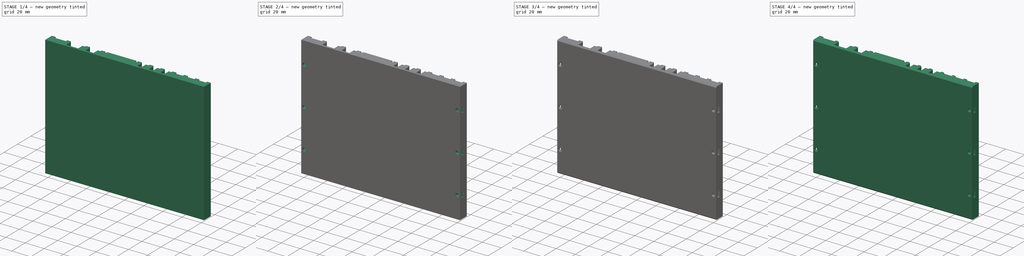
[diagram: build sequence overview — one tinted view per stage of 4, left to right]
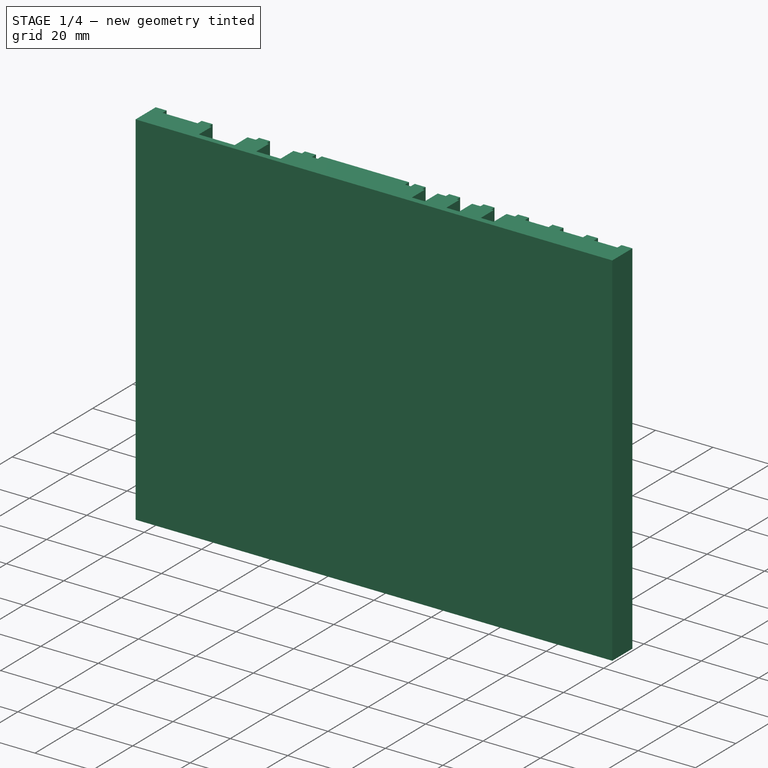
[diagram: stage 1 of 4 — iso view after this stage's code; geometry added in this stage tinted green]
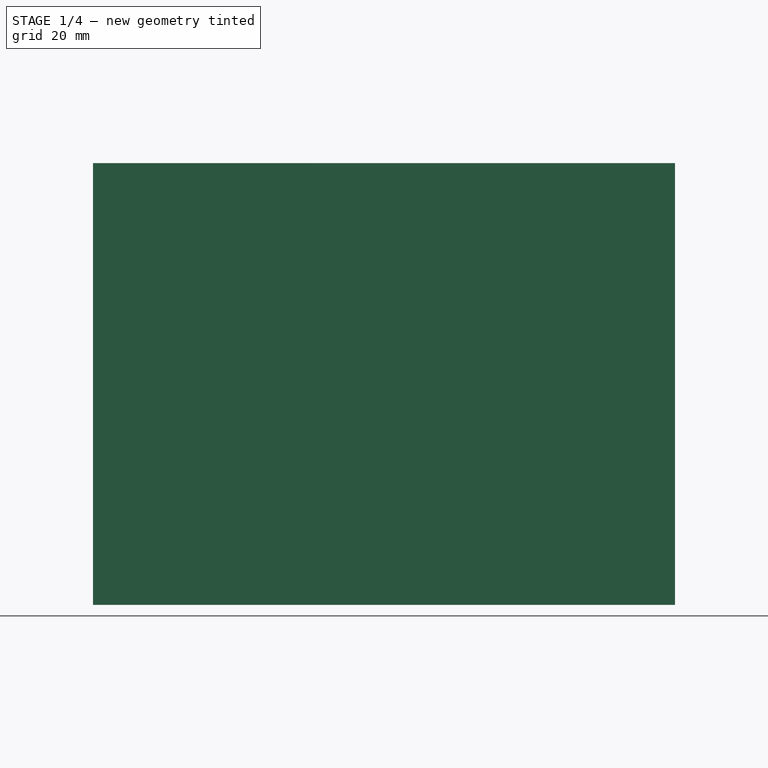
[diagram: stage 1 of 4 — front view after this stage's code; geometry added in this stage tinted green]
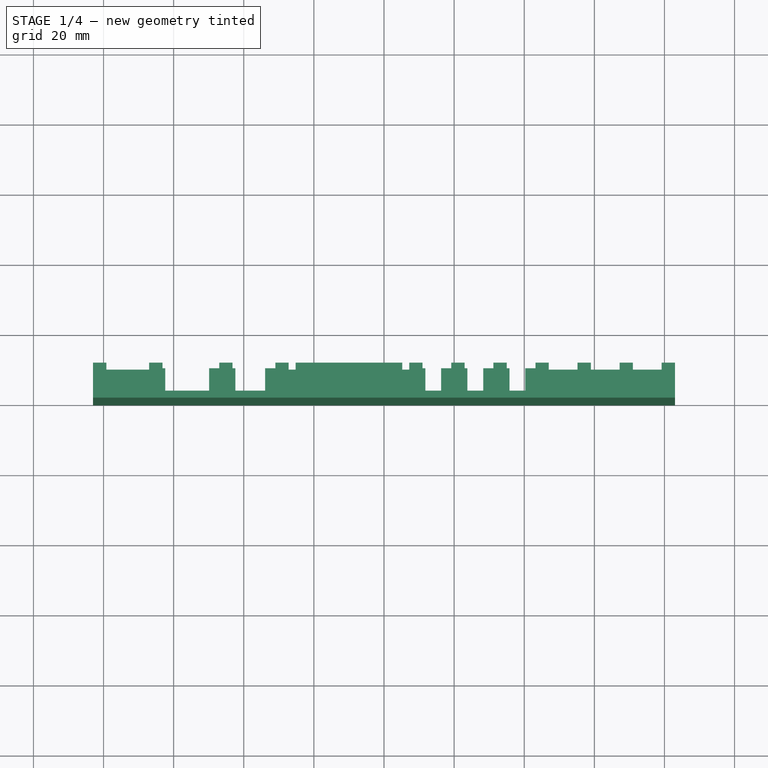
[diagram: stage 1 of 4 — top view after this stage's code; geometry added in this stage tinted green]
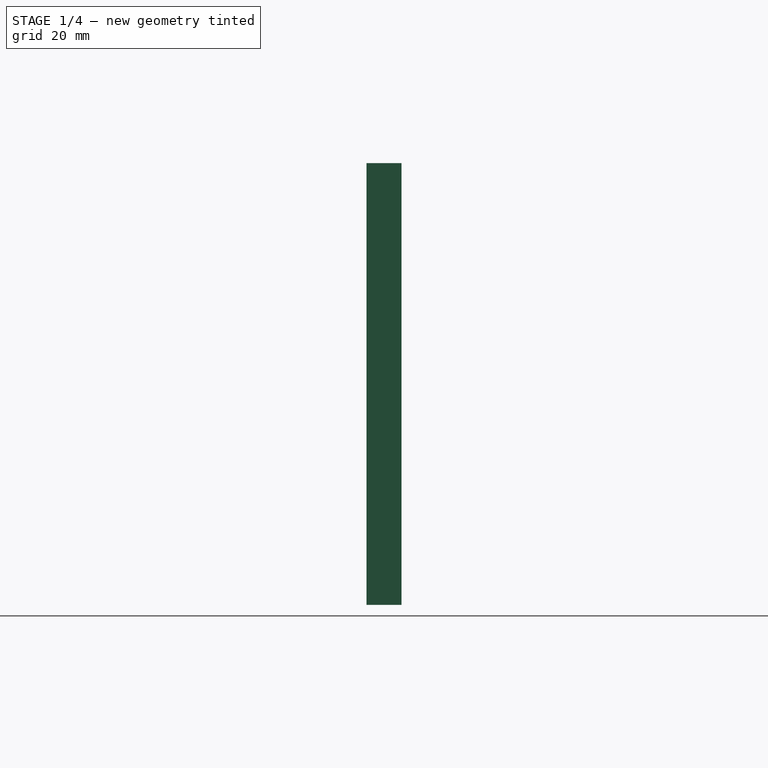
[diagram: stage 1 of 4 — right view after this stage's code; geometry added in this stage tinted green]
FCSTD DOCUMENT  (FreeCAD 0.16R6698 (Git))
Label: pnp feeder base 8
License: All rights reserved
LicenseURL: http://en.wikipedia.org/wiki/All_rights_reserved
objects: Sketcher::SketchObject×7, PartDesign::Pocket×5, PartDesign::Chamfer×2, PartDesign::Fillet×2, PartDesign::Pad×1
note: 23 computed .brp shape members not serialized (recipe doc carries the construction recipe); baked Part::Feature solids carry a one-line shape summary decoded from their .brp

FEATURE [Sketcher::SketchObject] Sketch  label="base"
  sketch-geometry (6):
    g0: LineSegment [constr] StartX=-80 StartY=22.6606 StartZ=0 EndX=-80 EndY=0 EndZ=0
    g1: LineSegment [constr] StartX=80 StartY=22.6606 StartZ=0 EndX=80 EndY=0 EndZ=0
    g2: LineSegment StartX=-83 StartY=0 StartZ=0 EndX=83 EndY=0 EndZ=0
    g3: LineSegment StartX=83 StartY=0 StartZ=0 EndX=83 EndY=10 EndZ=0
    g4: LineSegment StartX=83 StartY=10 StartZ=0 EndX=-83 EndY=10 EndZ=0
    g5: LineSegment StartX=-83 StartY=10 StartZ=0 EndX=-83 EndY=0 EndZ=0
  constraints (18):
    c: Vertical(g0)
    c: Vertical(g1)
    c: PointOnObject(g1,g-1)
    c: DistanceX(g0,g1) = 160
    c: PointOnObject(g0,g-1)
    c: Symmetric(g0,g1,g-2)
    c: Coincident(g2,g3)
    c: Coincident(g3,g4)
    c: Coincident(g4,g5)
    c: Coincident(g5,g2)
    c: Horizontal(g2)
    c: Horizontal(g4)
    c: Vertical(g3)
    c: Vertical(g5)
    c: PointOnObject(g2,g-1)
    c: DistanceY(g5,g5) = 10
    c: DistanceX(g4,g4) = 166
    c: Symmetric(g4,g3,g-2)
FEATURE [PartDesign::Pad] Pad
  Length = 126
  Length2 = 100
  Sketch = -> Sketch
  Type = 0
FEATURE [Sketcher::SketchObject] Sketch001  label="notches"
  ExternalGeometry = -> [Pad]
  Placement = pos=(0,0,126) rot=(0,0,1;0rad)
  Support = -> Pad [Face6]
  sketch-geometry (67):
    g0: LineSegment [constr] StartX=-80 StartY=12.2995 StartZ=0 EndX=-80 EndY=0 EndZ=0
    g1: LineSegment [constr] StartX=80 StartY=12.2995 StartZ=0 EndX=80 EndY=0 EndZ=0
    g2: LineSegment StartX=79.2 StartY=10 StartZ=0 EndX=71 EndY=10 EndZ=0
    g3: LineSegment StartX=71 StartY=10 StartZ=0 EndX=71 EndY=8 EndZ=0
    g4: LineSegment StartX=71 StartY=8 StartZ=0 EndX=79.2 EndY=8 EndZ=0
    g5: LineSegment StartX=79.2 StartY=8 StartZ=0 EndX=79.2 EndY=10 EndZ=0
    g6: LineSegment StartX=67.2 StartY=10 StartZ=0 EndX=59 EndY=10 EndZ=0
    g7: LineSegment StartX=59 StartY=10 StartZ=0 EndX=59 EndY=8 EndZ=0
    g8: LineSegment StartX=59 StartY=8 StartZ=0 EndX=67.2 EndY=8 EndZ=0
    g9: LineSegment StartX=67.2 StartY=8 StartZ=0 EndX=67.2 EndY=10 EndZ=0
    g10: LineSegment StartX=35 StartY=10 StartZ=0 EndX=43.2 EndY=10 EndZ=0
    g11: LineSegment StartX=43.2 StartY=10 StartZ=0 EndX=43.2 EndY=8.4 EndZ=0
    g12: LineSegment StartX=43.2 StartY=8.4 StartZ=0 EndX=40.3 EndY=8.4 EndZ=0
    g13: LineSegment StartX=35 StartY=8.4 StartZ=0 EndX=35 EndY=10 EndZ=0
    g14: LineSegment StartX=40.3 StartY=8.4 StartZ=0 EndX=40.3 EndY=2 EndZ=0
    g15: LineSegment StartX=40.3 StartY=2 StartZ=0 EndX=35.8 EndY=2 EndZ=0
    g16: LineSegment StartX=35.8 StartY=2 StartZ=0 EndX=35.8 EndY=8.4 EndZ=0
    g17: LineSegment StartX=35.8 StartY=8.4 StartZ=0 EndX=35 EndY=8.4 EndZ=0
    g18: LineSegment StartX=47 StartY=10 StartZ=0 EndX=55.2 EndY=10 EndZ=0
    g19: LineSegment StartX=55.2 StartY=10 StartZ=0 EndX=55.2 EndY=8 EndZ=0
    g20: LineSegment StartX=55.2 StartY=8 StartZ=0 EndX=47 EndY=8 EndZ=0
    g21: LineSegment StartX=47 StartY=8 StartZ=0 EndX=47 EndY=10 EndZ=0
    g22: LineSegment StartX=23 StartY=10 StartZ=0 EndX=23 EndY=8.4 EndZ=0
    g23: LineSegment StartX=23 StartY=8.4 StartZ=0 EndX=23.8 EndY=8.4 EndZ=0
    g24: LineSegment StartX=23.8 StartY=8.4 StartZ=0 EndX=23.8 EndY=2 EndZ=0
    g25: LineSegment StartX=23.8 StartY=2 StartZ=0 EndX=28.3 EndY=2 EndZ=0
    g26: LineSegment StartX=28.3 StartY=2 StartZ=0 EndX=28.3 EndY=8.4 EndZ=0
    g27: LineSegment StartX=28.3 StartY=8.4 StartZ=0 EndX=31.2 EndY=8.4 EndZ=0
    g28: LineSegment StartX=31.2 StartY=8.4 StartZ=0 EndX=31.2 EndY=10 EndZ=0
    g29: LineSegment StartX=31.2 StartY=10 StartZ=0 EndX=23 EndY=10 EndZ=0
    g30: LineSegment StartX=19.2 StartY=10 StartZ=0 EndX=19.2 EndY=8.4 EndZ=0
    g31: LineSegment StartX=19.2 StartY=8.4 StartZ=0 EndX=16.3 EndY=8.4 EndZ=0
    g32: LineSegment StartX=16.3 StartY=8.4 StartZ=0 EndX=16.3 EndY=2 EndZ=0
    g33: LineSegment StartX=16.3 StartY=2 StartZ=0 EndX=11.8 EndY=2 EndZ=0
    g34: LineSegment StartX=11.8 StartY=2 StartZ=0 EndX=11.8 EndY=8.4 EndZ=0
    g35: LineSegment StartX=11.8 StartY=8.4 StartZ=0 EndX=11 EndY=8.4 EndZ=0
    g36: LineSegment StartX=11 StartY=8.4 StartZ=0 EndX=11 EndY=10 EndZ=0
    g37: LineSegment StartX=11 StartY=10 StartZ=0 EndX=19.2 EndY=10 EndZ=0
    g38: LineSegment StartX=-31 StartY=10 StartZ=0 EndX=-31 EndY=8.4 EndZ=0
    g39: LineSegment StartX=-31 StartY=8.4 StartZ=0 EndX=-33.9 EndY=8.4 EndZ=0
    g40: LineSegment StartX=-33.9 StartY=8.4 StartZ=0 EndX=-33.9 EndY=2 EndZ=0
    g41: LineSegment StartX=-33.9 StartY=2 StartZ=0 EndX=-42.4 EndY=2 EndZ=0
    g42: LineSegment StartX=-42.4 StartY=2 StartZ=0 EndX=-42.4 EndY=8.4 EndZ=0
    g43: LineSegment StartX=-42.4 StartY=8.4 StartZ=0 EndX=-43.2 EndY=8.4 EndZ=0
    g44: LineSegment StartX=-43.2 StartY=8.4 StartZ=0 EndX=-43.2 EndY=10 EndZ=0
    g45: LineSegment StartX=-43.2 StartY=10 StartZ=0 EndX=-31 EndY=10 EndZ=0
    g46: LineSegment StartX=-67 StartY=10 StartZ=0 EndX=-67 EndY=8 EndZ=0
    g47: LineSegment StartX=-67 StartY=8 StartZ=0 EndX=-79.2 EndY=8 EndZ=0
    g48: LineSegment StartX=-79.2 StartY=8 StartZ=0 EndX=-79.2 EndY=10 EndZ=0
    g49: LineSegment StartX=-63.2 StartY=10 StartZ=0 EndX=-63.2 EndY=8.4 EndZ=0
    g50: LineSegment StartX=-63.2 StartY=8.4 StartZ=0 EndX=-62.4 EndY=8.4 EndZ=0
    g51: LineSegment StartX=-62.4 StartY=8.4 StartZ=0 EndX=-62.4 EndY=2 EndZ=0
    g52: LineSegment StartX=-62.4 StartY=2 StartZ=0 EndX=-49.9 EndY=2 EndZ=0
    g53: LineSegment StartX=-49.9 StartY=2 StartZ=0 EndX=-49.9 EndY=8.4 EndZ=0
    g54: LineSegment StartX=-49.9 StartY=8.4 StartZ=0 EndX=-47 EndY=8.4 EndZ=0
    g55: LineSegment StartX=-47 StartY=8.4 StartZ=0 EndX=-47 EndY=10 EndZ=0
    g56: LineSegment StartX=-47 StartY=10 StartZ=0 EndX=-63.2 EndY=10 EndZ=0
    g57: LineSegment StartX=-67 StartY=10 StartZ=0 EndX=-79.2 EndY=10 EndZ=0
    g58: LineSegment [constr] StartX=-83 StartY=10 StartZ=0 EndX=-83 EndY=8 EndZ=0
    g59: LineSegment StartX=-27.2 StartY=10 StartZ=0 EndX=-25.2 EndY=10 EndZ=0
    g60: LineSegment StartX=-25.2 StartY=10 StartZ=0 EndX=-25.2 EndY=8 EndZ=0
    g61: LineSegment StartX=-25.2 StartY=8 StartZ=0 EndX=-27.2 EndY=8 EndZ=0
    g62: LineSegment StartX=-27.2 StartY=8 StartZ=0 EndX=-27.2 EndY=10 EndZ=0
    g63: LineSegment StartX=5.2 StartY=10 StartZ=0 EndX=7.2 EndY=10 EndZ=0
    g64: LineSegment StartX=7.2 StartY=10 StartZ=0 EndX=7.2 EndY=8 EndZ=0
    g65: LineSegment StartX=7.2 StartY=8 StartZ=0 EndX=5.2 EndY=8 EndZ=0
    g66: LineSegment StartX=5.2 StartY=8 StartZ=0 EndX=5.2 EndY=10 EndZ=0
  constraints (185):
    c: Vertical(g0)
    c: Vertical(g1)
    c: PointOnObject(g0,g-1)
    c: PointOnObject(g1,g-1)
    c: DistanceX(g0,g1) = 160
    c: Coincident(g2,g3)
    c: Coincident(g3,g4)
    c: Coincident(g4,g5)
    c: Coincident(g5,g2)
    c: Horizontal(g2)
    c: Horizontal(g4)
    c: Vertical(g3)
    c: Vertical(g5)
    c: Coincident(g6,g7)
    c: Coincident(g7,g8)
    c: Coincident(g8,g9)
    c: Coincident(g9,g6)
    c: Horizontal(g6)
    c: Horizontal(g8)
    c: Vertical(g7)
    c: Vertical(g9)
    c: DistanceX(g2,g-3) = 3.8
    c: DistanceX(g2,g2) = 8.2
    c: DistanceX(g6,g2) = 3.8
    c: DistanceX(g6,g6) = 8.2
    c: DistanceY(g9,g9) = 2
    c: DistanceY(g3,g3) = 2
    c: Coincident(g10,g11)
    c: Coincident(g11,g12)
    c: Coincident(g17,g13)
    c: Coincident(g13,g10)
    c: Horizontal(g10)
    c: Horizontal(g12)
    c: Vertical(g11)
    c: Vertical(g13)
    c: DistanceY(g11,g11) = 1.6
    c: DistanceX(g10,g10) = 8.2
    c: Coincident(g14,g15)
    c: Coincident(g15,g16)
    c: Horizontal(g15)
    c: Vertical(g14)
    c: Vertical(g16)
    c: PointOnObject(g16,g12)
    c: PointOnObject(g12,g14)
    c: PointOnObject(g17,g16)
    c: Tangent(g12,g17)
    c: DistanceX(g17,g17) = 0.8
    c: DistanceY(g16,g16) = 6.4
    c: DistanceX(g15,g15) = 4.5
    c: Coincident(g18,g19)
    c: Coincident(g19,g20)
    c: Coincident(g20,g21)
    c: Coincident(g21,g18)
    c: Horizontal(g18)
    c: Horizontal(g20)
    c: Vertical(g19)
    c: Vertical(g21)
    c: DistanceY(g21,g21) = 2
    c: DistanceX(g20,g20) = 8.2
    c: DistanceX(g18,g6) = 3.8
    c: DistanceX(g10,g18) = 3.8
    c: Vertical(g22)
    c: Coincident(g22,g23)
    c: Horizontal(g23)
    c: Coincident(g23,g24)
    c: Vertical(g24)
    c: Coincident(g24,g25)
    c: Horizontal(g25)
    c: Coincident(g25,g26)
    c: Vertical(g26)
    c: Coincident(g26,g27)
    c: Horizontal(g27)
    c: Coincident(g27,g28)
    c: Vertical(g28)
    c: Coincident(g28,g29)
    c: Coincident(g29,g22)
    c: Equal(g28,g22)
    c: DistanceY(g28,g28) = 1.6
    c: DistanceX(g23,g23) = 0.8
    c: DistanceY(g24,g24) = 6.4
    c: DistanceX(g25,g25) = 4.5
    c: DistanceX(g28,g10) = 3.8
    c: DistanceX(g22,g28) = 8.2
    c: Vertical(g30)
    c: Coincident(g30,g31)
    c: Horizontal(g31)
    c: Coincident(g31,g32)
    c: Vertical(g32)
    c: Coincident(g32,g33)
    c: Horizontal(g33)
    c: Coincident(g33,g34)
    c: Vertical(g34)
    c: Coincident(g34,g35)
    c: Horizontal(g35)
    c: Coincident(g35,g36)
    c: Coincident(g36,g37)
    c: Coincident(g37,g30)
    c: DistanceX(g30,g22) = 3.8
    c: DistanceY(g36,g36) = 1.6
    c: Equal(g36,g30)
    c: DistanceX(g35,g35) = 0.8
    c: DistanceY(g34,g34) = 6.4
    c: DistanceX(g33,g33) = 4.5
    c: DistanceX(g36,g30) = 8.2
    c: Vertical(g36)
    c: Coincident(g38,g39)
    c: Horizontal(g39)
    c: Coincident(g39,g40)
    c: Coincident(g40,g41)
    c: Horizontal(g41)
    c: Coincident(g41,g42)
    c: Vertical(g42)
    c: Coincident(g42,g43)
    c: Horizontal(g43)
    c: Coincident(g43,g44)
    c: Vertical(g44)
    c: Coincident(g44,g45)
    c: Coincident(g45,g38)
    c: Vertical(g40)
    c: Vertical(g38)
    c: Equal(g44,g38)
    c: DistanceY(g44,g44) = 1.6
    c: DistanceX(g43,g43) = 0.8
    c: DistanceY(g42,g42) = 6.4
    c: DistanceX(g41,g41) = 8.5
    c: DistanceX(g44,g38) = 12.2
    c: Coincident(g46,g47)
    c: Coincident(g47,g48)
    c: Horizontal(g47)
    c: Vertical(g46)
    c: Vertical(g48)
    c: DistanceY(g48,g48) = 2
    c: DistanceX(g47,g47) = 12.2
    c: Vertical(g49)
    c: Coincident(g49,g50)
    c: Horizontal(g50)
    c: Coincident(g50,g51)
    c: Vertical(g51)
    c: Coincident(g51,g52)
    c: Horizontal(g52)
    c: Coincident(g52,g53)
    c: Vertical(g53)
    c: Coincident(g53,g54)
    c: Horizontal(g54)
    c: Coincident(g54,g55)
    c: Vertical(g55)
    c: Coincident(g55,g56)
    c: Coincident(g56,g49)
    c: Equal(g49,g55)
    c: DistanceY(g49,g49) = 1.6
    c: DistanceX(g50,g50) = 0.8
    c: DistanceY(g51,g51) = 6.4
    c: DistanceX(g49,g55) = 16.2
    c: DistanceX(g54,g54) = 2.9
    c: DistanceX(g55,g44) = 3.8
    c: Coincident(g57,g46)
    c: Vertical(g58)
    c: Coincident(g57,g48)
    c: DistanceY(g-1,g36) = 10
    c: Horizontal(g37)
    c: Coincident(g59,g60)
    c: Coincident(g60,g61)
    c: Coincident(g61,g62)
    c: Coincident(g62,g59)
    c: Horizontal(g59)
    c: Horizontal(g61)
    c: Vertical(g60)
    c: Vertical(g62)
    c: DistanceY(g62,g62) = 2
    c: DistanceX(g61,g61) = 2
    c: Coincident(g63,g64)
    c: Coincident(g64,g65)
    c: Coincident(g65,g66)
    c: Coincident(g66,g63)
    c: Horizontal(g63)
    c: Horizontal(g65)
    c: Vertical(g64)
    c: Vertical(g66)
    c: DistanceX(g63,g36) = 3.8
    c: DistanceX(g65,g65) = 2
    c: DistanceX(g38,g59) = 3.8
    c: Horizontal(g56)
    c: Horizontal(g57)
    c: DistanceX(g58,g48) = 3.8
    c: DistanceX(g46,g49) = 3.8
FEATURE [PartDesign::Pocket] Pocket
  Length = 5
  Sketch = -> Sketch001
  Type = 1
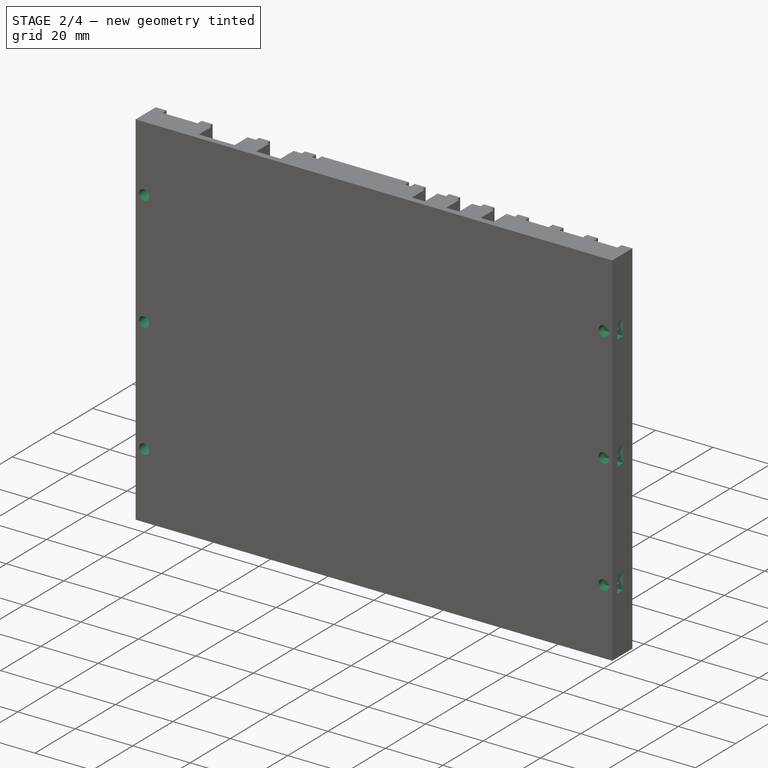
[diagram: stage 2 of 4 — iso view after this stage's code; geometry added in this stage tinted green]
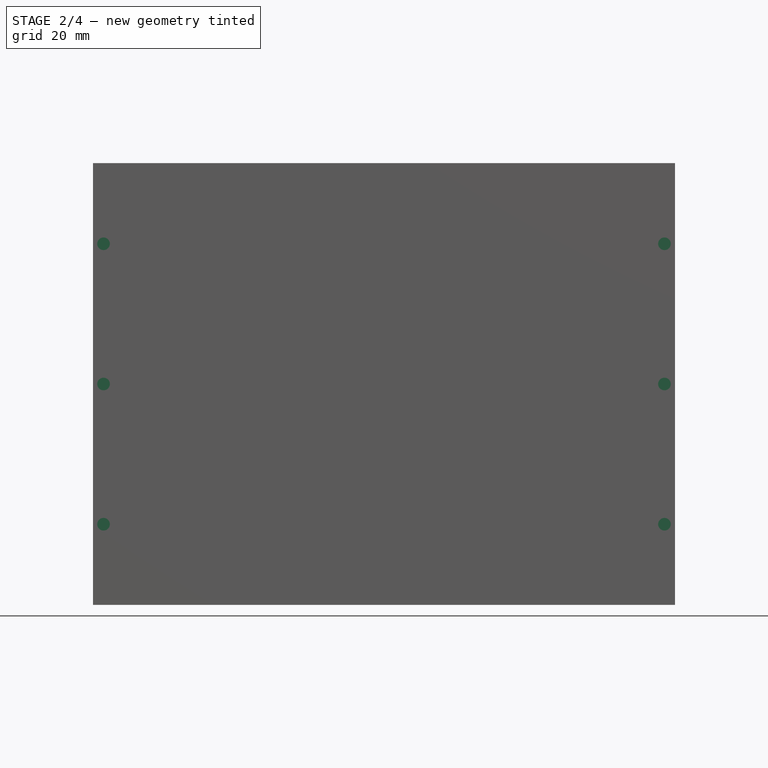
[diagram: stage 2 of 4 — front view after this stage's code; geometry added in this stage tinted green]
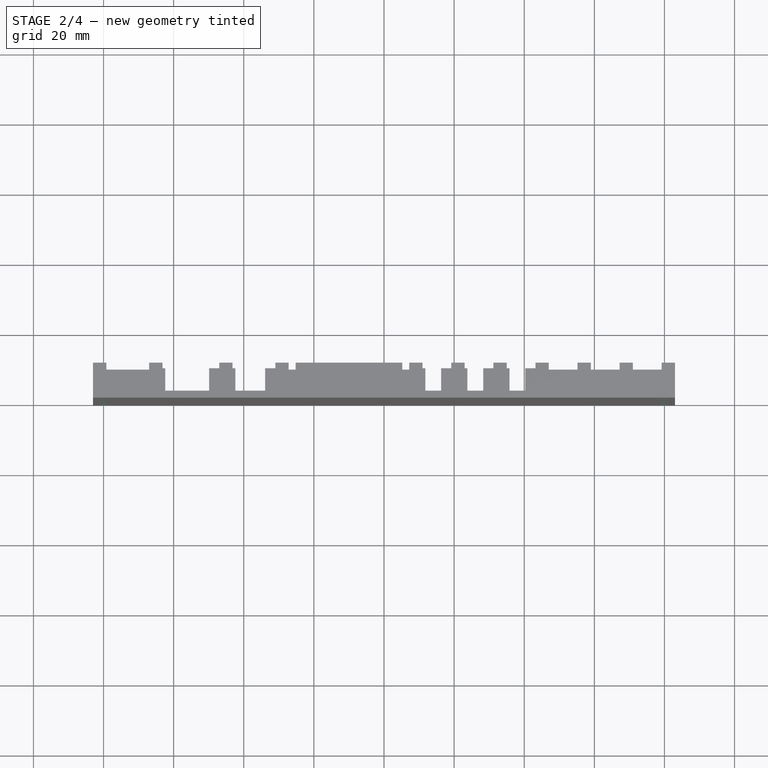
[diagram: stage 2 of 4 — top view after this stage's code; geometry added in this stage tinted green]
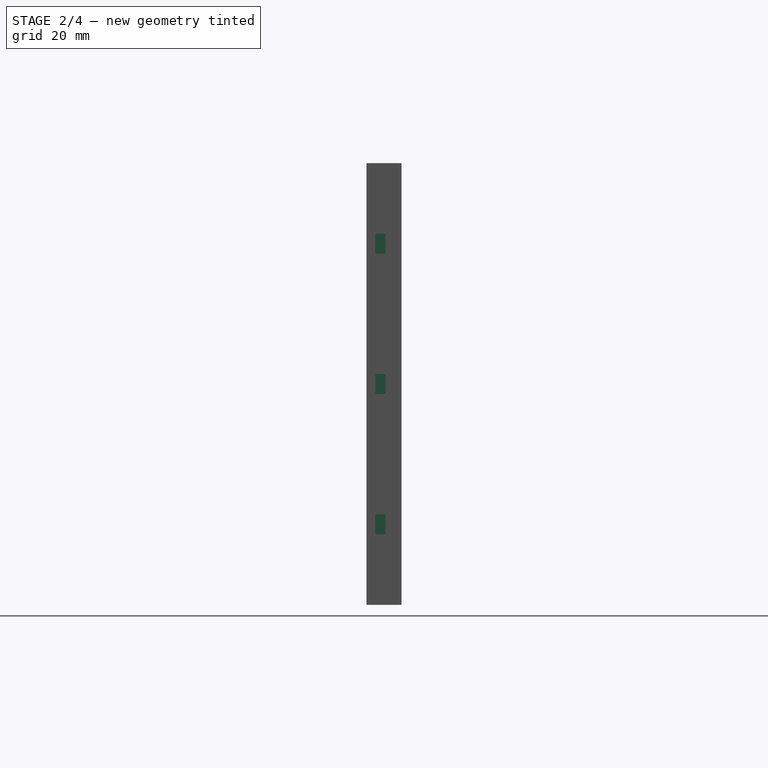
[diagram: stage 2 of 4 — right view after this stage's code; geometry added in this stage tinted green]
FEATURE [Sketcher::SketchObject] Sketch004  label="mount holes"
  Placement = pos=(0,0,0) rot=(1,0,0;1.5708rad)
  Support = -> Pocket [Face1]
  sketch-geometry (10):
    g0: Circle CenterX=-80 CenterY=103 CenterZ=0 NormalX=0 NormalY=0 NormalZ=1 Radius=1.8
    g1: Circle CenterX=80 CenterY=103 CenterZ=0 NormalX=0 NormalY=0 NormalZ=1 Radius=1.8
    g2: Circle CenterX=-80 CenterY=23 CenterZ=0 NormalX=0 NormalY=0 NormalZ=1 Radius=1.8
    g3: Circle CenterX=80 CenterY=23 CenterZ=0 NormalX=0 NormalY=0 NormalZ=1 Radius=1.8
    g4: Circle CenterX=80 CenterY=63 CenterZ=0 NormalX=0 NormalY=0 NormalZ=1 Radius=1.8
    g5: Circle CenterX=-80 CenterY=63 CenterZ=0 NormalX=0 NormalY=0 NormalZ=1 Radius=1.8
    g6: LineSegment [constr] StartX=-80 StartY=103 StartZ=0 EndX=80 EndY=103 EndZ=0
    g7: LineSegment [constr] StartX=80 StartY=103 StartZ=0 EndX=80 EndY=23 EndZ=0
    g8: LineSegment [constr] StartX=80 StartY=23 StartZ=0 EndX=-80 EndY=23 EndZ=0
    g9: LineSegment [constr] StartX=-80 StartY=23 StartZ=0 EndX=-80 EndY=103 EndZ=0
  constraints (26):
    c: Coincident(g7,g8)
    c: Horizontal(g6)
    c: Horizontal(g8)
    c: Vertical(g7)
    c: Vertical(g9)
    c: DistanceX(g6,g6) = 160
    c: DistanceY(g9,g9) = 80
    c: PointOnObject(g5,g9)
    c: DistanceY(g5,g9) = 40
    c: PointOnObject(g4,g7)
    c: DistanceY(g4,g7) = 40
    c: Coincident(g1,g6)
    c: Coincident(g1,g7)
    c: Coincident(g6,g9)
    c: Coincident(g0,g6)
    c: Coincident(g8,g9)
    c: Coincident(g2,g8)
    c: Coincident(g3,g7)
    c: Radius(g0) = 1.8
    c: Equal(g0,g5)
    c: Equal(g0,g2)
    c: Equal(g0,g1)
    c: Equal(g0,g4)
    c: Equal(g0,g3)
    c: Symmetric(g1,g0,g-2)
    c: DistanceY(g-1,g5) = 63
FEATURE [PartDesign::Pocket] Pocket001
  Length = 7
  Sketch = -> Sketch004
  Type = 0
FEATURE [Sketcher::SketchObject] Sketch005  label="ICs"
  Placement = pos=(0,10,0) rot=(0,0.707107,0.707107;3.14159rad)
  Support = -> Pocket001 [Face53]
  sketch-geometry (40):
    g0: LineSegment StartX=-1 StartY=122 StartZ=0 EndX=8 EndY=122 EndZ=0
    g1: LineSegment StartX=8 StartY=122 StartZ=0 EndX=8 EndY=112 EndZ=0
    g2: LineSegment StartX=8 StartY=112 StartZ=0 EndX=-2 EndY=112 EndZ=0
    g3: LineSegment StartX=-2 StartY=112 StartZ=0 EndX=-2 EndY=121 EndZ=0
    g4: LineSegment StartX=13 StartY=122 StartZ=0 EndX=22 EndY=122 EndZ=0
    g5: LineSegment StartX=22 StartY=122 StartZ=0 EndX=22 EndY=112 EndZ=0
    g6: LineSegment StartX=22 StartY=112 StartZ=0 EndX=12 EndY=112 EndZ=0
    g7: LineSegment StartX=12 StartY=112 StartZ=0 EndX=12 EndY=121 EndZ=0
    g8: ArcOfCircle CenterX=-2 CenterY=122 CenterZ=0 NormalX=0 NormalY=0 NormalZ=1 Radius=1 StartAngle=0 EndAngle=4.71239
    g9: ArcOfCircle CenterX=12 CenterY=122 CenterZ=0 NormalX=0 NormalY=0 NormalZ=1 Radius=1 StartAngle=0 EndAngle=4.71239
    g10: LineSegment StartX=-1 StartY=108 StartZ=0 EndX=8 EndY=108 EndZ=0
    g11: LineSegment StartX=8 StartY=108 StartZ=0 EndX=8 EndY=98 EndZ=0
    g12: LineSegment StartX=8 StartY=98 StartZ=0 EndX=-2 EndY=98 EndZ=0
    g13: LineSegment StartX=-2 StartY=98 StartZ=0 EndX=-2 EndY=107 EndZ=0
    g14: LineSegment StartX=13 StartY=108 StartZ=0 EndX=22 EndY=108 EndZ=0
    g15: LineSegment StartX=22 StartY=108 StartZ=0 EndX=22 EndY=98 EndZ=0
    g16: LineSegment StartX=22 StartY=98 StartZ=0 EndX=12 EndY=98 EndZ=0
    g17: LineSegment StartX=12 StartY=98 StartZ=0 EndX=12 EndY=107 EndZ=0
    g18: ArcOfCircle CenterX=-2 CenterY=108 CenterZ=0 NormalX=0 NormalY=0 NormalZ=1 Radius=1 StartAngle=0 EndAngle=4.71239
    g19: ArcOfCircle CenterX=12 CenterY=108 CenterZ=0 NormalX=0 NormalY=0 NormalZ=1 Radius=1 StartAngle=0 EndAngle=4.71239
    g20: LineSegment StartX=-1 StartY=94 StartZ=0 EndX=22 EndY=94 EndZ=0
    g21: LineSegment StartX=22 StartY=94 StartZ=0 EndX=22 EndY=70 EndZ=0
    g22: LineSegment StartX=22 StartY=70 StartZ=0 EndX=-2 EndY=70 EndZ=0
    g23: LineSegment StartX=-2 StartY=70 StartZ=0 EndX=-2 EndY=93 EndZ=0
    g24: ArcOfCircle CenterX=-2 CenterY=94 CenterZ=0 NormalX=0 NormalY=0 NormalZ=1 Radius=1 StartAngle=0 EndAngle=4.71239
    g25: LineSegment StartX=-1 StartY=66 StartZ=0 EndX=22 EndY=66 EndZ=0
    g26: LineSegment StartX=22 StartY=66 StartZ=0 EndX=22 EndY=42 EndZ=0
    g27: LineSegment StartX=22 StartY=42 StartZ=0 EndX=-2 EndY=42 EndZ=0
    g28: LineSegment StartX=-2 StartY=42 StartZ=0 EndX=-2 EndY=65 EndZ=0
    g29: ArcOfCircle CenterX=-2 CenterY=66 CenterZ=0 NormalX=0 NormalY=0 NormalZ=1 Radius=1 StartAngle=0 EndAngle=4.71239
    g30: LineSegment StartX=-1 StartY=38 StartZ=0 EndX=8 EndY=38 EndZ=0
    g31: LineSegment StartX=8 StartY=38 StartZ=0 EndX=8 EndY=3 EndZ=0
    g32: LineSegment StartX=8 StartY=3 StartZ=0 EndX=-2 EndY=3 EndZ=0
    g33: LineSegment StartX=-2 StartY=3 StartZ=0 EndX=-2 EndY=37 EndZ=0
    g34: LineSegment StartX=13 StartY=38 StartZ=0 EndX=22 EndY=38 EndZ=0
    g35: LineSegment StartX=22 StartY=38 StartZ=0 EndX=22 EndY=3 EndZ=0
    g36: LineSegment StartX=22 StartY=3 StartZ=0 EndX=12 EndY=3 EndZ=0
    g37: LineSegment StartX=12 StartY=3 StartZ=0 EndX=12 EndY=37 EndZ=0
    g38: ArcOfCircle CenterX=12 CenterY=38 CenterZ=0 NormalX=0 NormalY=0 NormalZ=1 Radius=1 StartAngle=0 EndAngle=4.71239
    g39: ArcOfCircle CenterX=-2 CenterY=38 CenterZ=0 NormalX=0 NormalY=0 NormalZ=1 Radius=1 StartAngle=0 EndAngle=4.71239
  constraints (72):
    c: Coincident(g0,g1)
    c: Coincident(g1,g2)
    c: Coincident(g2,g3)
    c: Horizontal(g0)
    c: Horizontal(g2)
    c: Vertical(g1)
    c: Vertical(g3)
    c: Coincident(g4,g5)
    c: Coincident(g5,g6)
    c: Coincident(g6,g7)
    c: Horizontal(g4)
    c: Horizontal(g6)
    c: Vertical(g5)
    c: Vertical(g7)
    c: Coincident(g7,g9)
    c: Coincident(g3,g8)
    c: Coincident(g0,g8)
    c: Coincident(g4,g9)
    c: Coincident(g10,g11)
    c: Coincident(g11,g12)
    c: Coincident(g12,g13)
    c: Horizontal(g10)
    c: Horizontal(g12)
    c: Vertical(g11)
    c: Vertical(g13)
    c: Coincident(g14,g15)
    c: Coincident(g15,g16)
    c: Coincident(g16,g17)
    c: Horizontal(g14)
    c: Horizontal(g16)
    c: Vertical(g15)
    c: Vertical(g17)
    c: Coincident(g13,g18)
    c: Coincident(g17,g19)
    c: Coincident(g14,g19)
    c: Coincident(g10,g18)
    c: Coincident(g20,g21)
    c: Coincident(g21,g22)
    c: Coincident(g22,g23)
    c: Horizontal(g20)
    c: Horizontal(g22)
    c: Vertical(g21)
    c: Vertical(g23)
    c: Coincident(g23,g24)
    c: Coincident(g20,g24)
    c: Coincident(g25,g26)
    c: Coincident(g26,g27)
    c: Coincident(g27,g28)
    c: Horizontal(g25)
    c: Horizontal(g27)
    c: Vertical(g26)
    c: Vertical(g28)
    c: Coincident(g28,g29)
    c: Coincident(g25,g29)
    c: Coincident(g30,g31)
    c: Coincident(g31,g32)
    c: Coincident(g32,g33)
    c: Horizontal(g30)
    c: Horizontal(g32)
    c: Vertical(g31)
    c: Vertical(g33)
    c: Coincident(g34,g35)
    c: Coincident(g35,g36)
    c: Coincident(g36,g37)
    c: Horizontal(g34)
    c: Horizontal(g36)
    c: Vertical(g35)
    c: Vertical(g37)
    c: Coincident(g34,g38)
    c: Coincident(g37,g38)
    c: Coincident(g39,g30)
    c: Coincident(g39,g33)
FEATURE [PartDesign::Pocket] Pocket002
  Length = 1
  Sketch = -> Sketch005
  Type = 0
FEATURE [Sketcher::SketchObject] Sketch006  label="mount nut lower"
  ExternalGeometry = -> [Pocket002]
  Placement = pos=(83,0,0) rot=(0.57735,0.57735,0.57735;2.0944rad)
  Support = -> Pocket002 [Face5]
  sketch-geometry (12):
    g0: LineSegment StartX=2.50418 StartY=105.85 StartZ=0 EndX=5.40418 EndY=105.85 EndZ=0
    g1: LineSegment StartX=5.40418 StartY=105.85 StartZ=0 EndX=5.40418 EndY=100.15 EndZ=0
    g2: LineSegment StartX=5.40418 StartY=100.15 StartZ=0 EndX=2.50418 EndY=100.15 EndZ=0
    g3: LineSegment StartX=2.50418 StartY=100.15 StartZ=0 EndX=2.50418 EndY=105.85 EndZ=0
    g4: LineSegment StartX=2.5431 StartY=65.85 StartZ=0 EndX=5.44309 EndY=65.85 EndZ=0
    g5: LineSegment StartX=5.44309 StartY=65.85 StartZ=0 EndX=5.44309 EndY=60.15 EndZ=0
    g6: LineSegment StartX=5.44309 StartY=60.15 StartZ=0 EndX=2.5431 EndY=60.15 EndZ=0
    g7: LineSegment StartX=2.5431 StartY=60.15 StartZ=0 EndX=2.5431 EndY=65.85 EndZ=0
    g8: LineSegment StartX=2.50432 StartY=25.85 StartZ=0 EndX=5.40432 EndY=25.85 EndZ=0
    g9: LineSegment StartX=5.40432 StartY=25.85 StartZ=0 EndX=5.40432 EndY=20.15 EndZ=0
    g10: LineSegment StartX=5.40432 StartY=20.15 StartZ=0 EndX=2.50432 EndY=20.15 EndZ=0
    g11: LineSegment StartX=2.50432 StartY=20.15 StartZ=0 EndX=2.50432 EndY=25.85 EndZ=0
  constraints (33):
    c: Coincident(g0,g1)
    c: Coincident(g1,g2)
    c: Coincident(g2,g3)
    c: Coincident(g3,g0)
    c: Horizontal(g0)
    c: Horizontal(g2)
    c: Vertical(g1)
    c: Vertical(g3)
    c: DistanceY(g1,g1) = 5.7
    c: Symmetric(g0,g1,g-3)
    c: DistanceX(g0,g0) = 2.9
    c: Coincident(g4,g5)
    c: Coincident(g5,g6)
    c: Coincident(g6,g7)
    c: Coincident(g7,g4)
    c: Horizontal(g4)
    c: Horizontal(g6)
    c: Vertical(g5)
    c: Vertical(g7)
    c: Coincident(g8,g9)
    c: Coincident(g9,g10)
    c: Coincident(g10,g11)
    c: Coincident(g11,g8)
    c: Horizontal(g8)
    c: Horizontal(g10)
    c: Vertical(g9)
    c: Vertical(g11)
    c: Equal(g4,g8)
    c: Equal(g5,g9)
    c: DistanceY(g5,g5) = 5.7
    c: DistanceX(g4,g4) = 2.9
    c: Symmetric(g4,g5,g-4)
    c: Symmetric(g8,g9,g-5)
FEATURE [PartDesign::Pocket] Pocket003
  Length = 7
  Sketch = -> Sketch006
  Type = 0
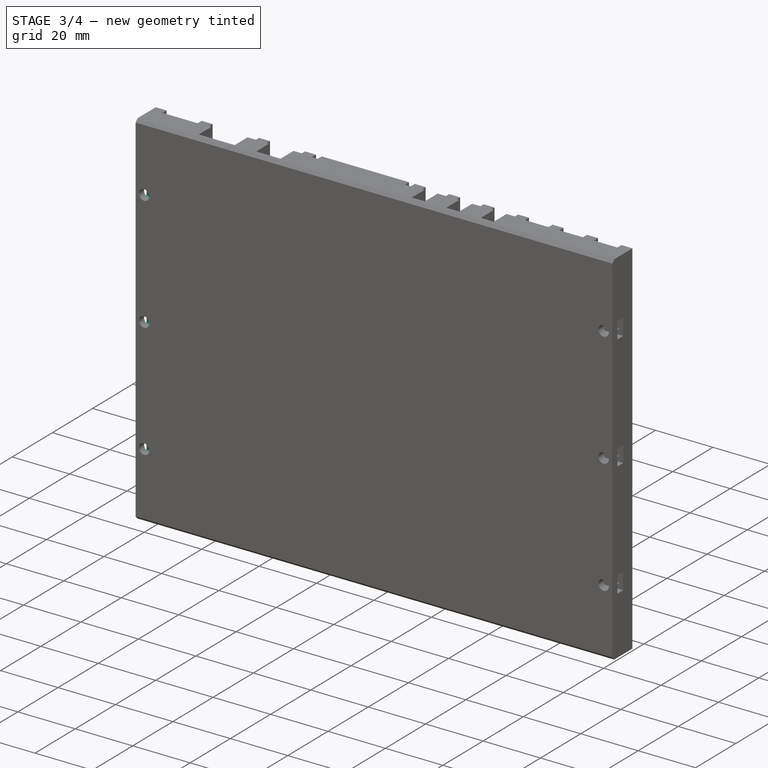
[diagram: stage 3 of 4 — iso view after this stage's code; geometry added in this stage tinted green]
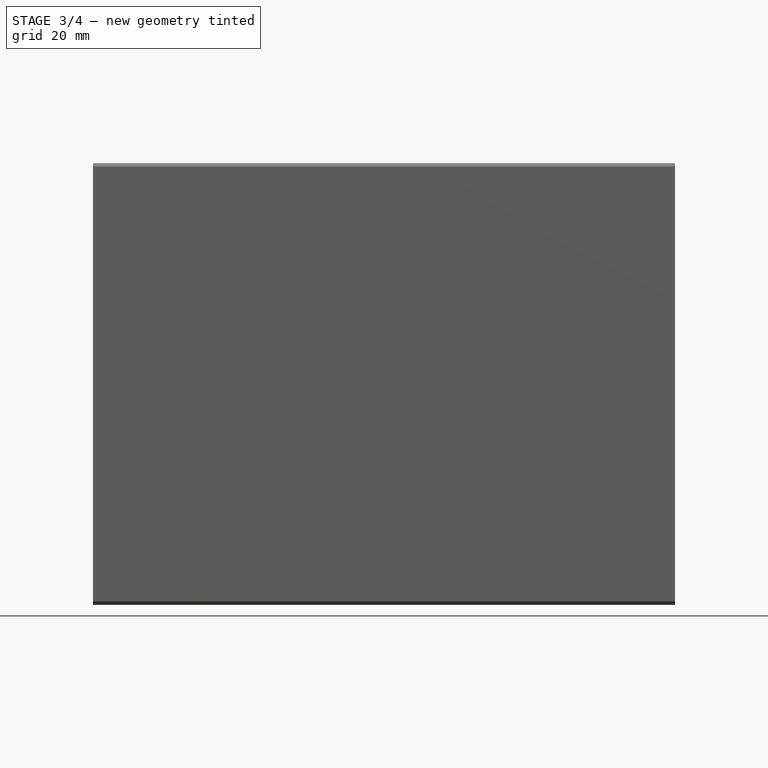
[diagram: stage 3 of 4 — front view after this stage's code; geometry added in this stage tinted green]
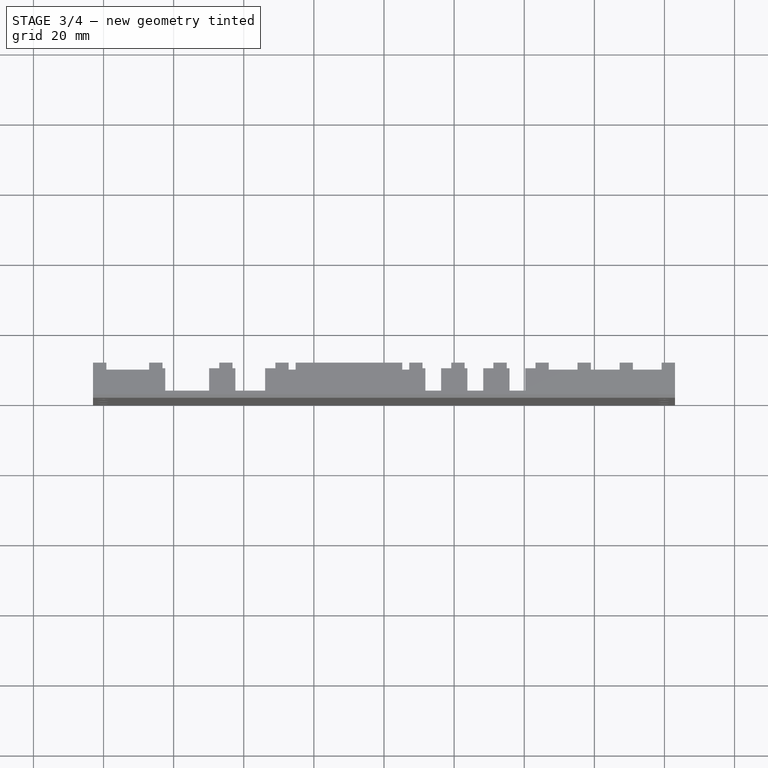
[diagram: stage 3 of 4 — top view after this stage's code; geometry added in this stage tinted green]
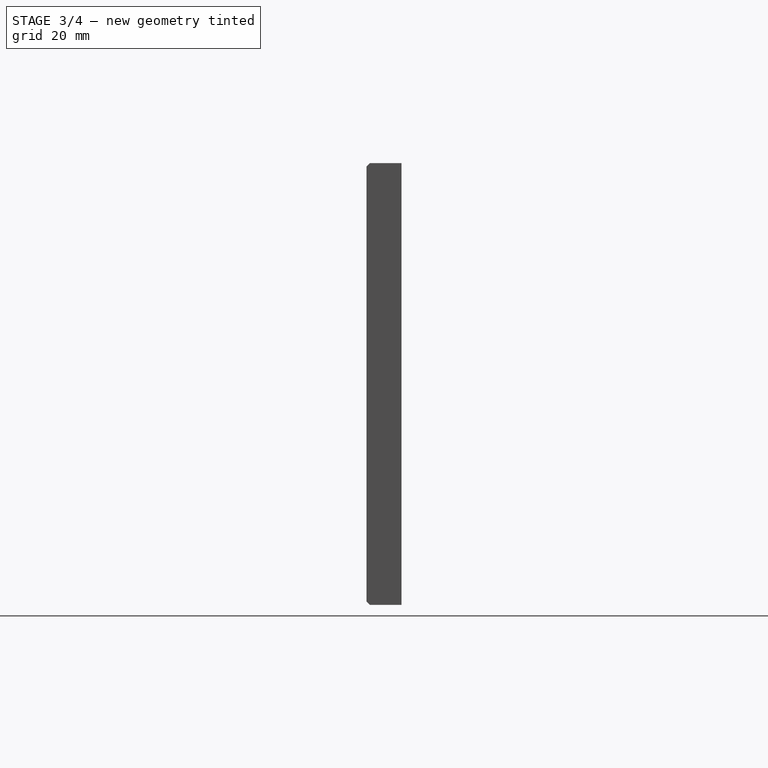
[diagram: stage 3 of 4 — right view after this stage's code; geometry added in this stage tinted green]
FEATURE [Sketcher::SketchObject] Sketch007  label="mount nut upper"
  ExternalGeometry = -> [Pocket002]
  Placement = pos=(-83,0,0) rot=(0.57735,-0.57735,-0.57735;2.0944rad)
  Support = -> Pocket003 [Face2]
  sketch-geometry (12):
    g0: LineSegment StartX=-5.4 StartY=105.85 StartZ=0 EndX=-2.5 EndY=105.85 EndZ=0
    g1: LineSegment StartX=-2.5 StartY=105.85 StartZ=0 EndX=-2.5 EndY=100.15 EndZ=0
    g2: LineSegment StartX=-2.5 StartY=100.15 StartZ=0 EndX=-5.4 EndY=100.15 EndZ=0
    g3: LineSegment StartX=-5.4 StartY=100.15 StartZ=0 EndX=-5.4 EndY=105.85 EndZ=0
    g4: LineSegment StartX=-5.4 StartY=65.85 StartZ=0 EndX=-2.5 EndY=65.85 EndZ=0
    g5: LineSegment StartX=-2.5 StartY=65.85 StartZ=0 EndX=-2.5 EndY=60.15 EndZ=0
    g6: LineSegment StartX=-2.5 StartY=60.15 StartZ=0 EndX=-5.4 EndY=60.15 EndZ=0
    g7: LineSegment StartX=-5.4 StartY=60.15 StartZ=0 EndX=-5.4 EndY=65.85 EndZ=0
    g8: LineSegment StartX=-5.4 StartY=25.85 StartZ=0 EndX=-2.5 EndY=25.85 EndZ=0
    g9: LineSegment StartX=-2.5 StartY=25.85 StartZ=0 EndX=-2.5 EndY=20.15 EndZ=0
    g10: LineSegment StartX=-2.5 StartY=20.15 StartZ=0 EndX=-5.4 EndY=20.15 EndZ=0
    g11: LineSegment StartX=-5.4 StartY=20.15 StartZ=0 EndX=-5.4 EndY=25.85 EndZ=0
  constraints (33):
    c: Coincident(g0,g1)
    c: Coincident(g1,g2)
    c: Coincident(g2,g3)
    c: Coincident(g3,g0)
    c: Horizontal(g0)
    c: Horizontal(g2)
    c: Vertical(g1)
    c: Vertical(g3)
    c: DistanceY(g1,g1) = 5.7
    c: Symmetric(g0,g1,g-3)
    c: DistanceX(g0,g0) = 2.9
    c: Coincident(g4,g5)
    c: Coincident(g5,g6)
    c: Coincident(g6,g7)
    c: Coincident(g7,g4)
    c: Horizontal(g4)
    c: Horizontal(g6)
    c: Vertical(g5)
    c: Vertical(g7)
    c: Coincident(g8,g9)
    c: Coincident(g9,g10)
    c: Coincident(g10,g11)
    c: Coincident(g11,g8)
    c: Horizontal(g8)
    c: Horizontal(g10)
    c: Vertical(g9)
    c: Vertical(g11)
    c: Equal(g4,g8)
    c: Equal(g5,g9)
    c: DistanceY(g5,g5) = 5.7
    c: DistanceX(g4,g4) = 2.9
    c: Symmetric(g4,g5,g-4)
    c: Symmetric(g8,g9,g-5)
FEATURE [PartDesign::Pocket] Pocket004
  Length = 7
  Sketch = -> Sketch007
  Type = 0
FEATURE [PartDesign::Chamfer] Chamfer
  Base = -> Pocket004 [Edge2]
  Size = 1
FEATURE [PartDesign::Chamfer] Chamfer001
  Base = -> Chamfer [Edge3]
  Size = 1
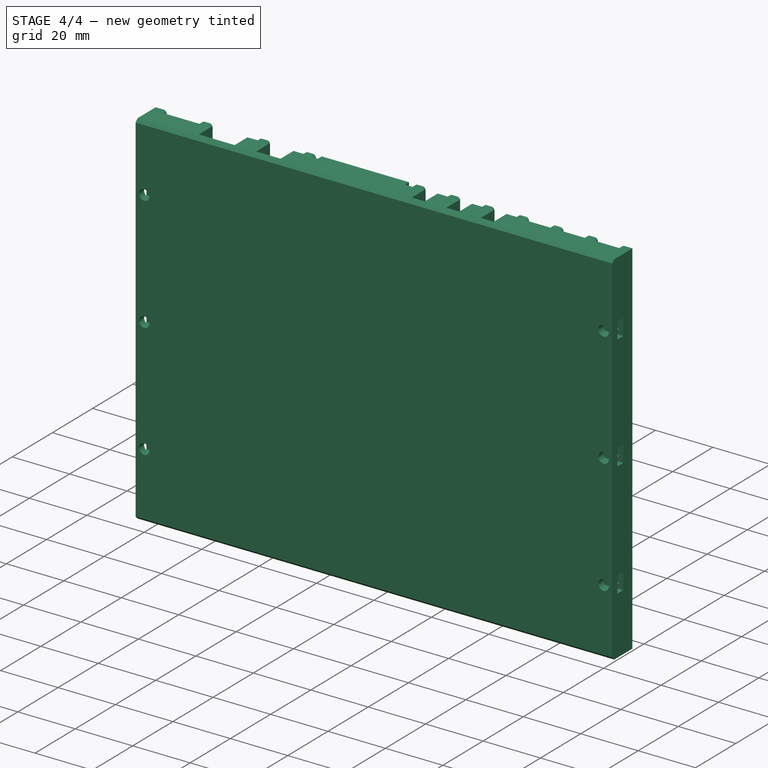
[diagram: stage 4 of 4 — iso view after this stage's code; geometry added in this stage tinted green]
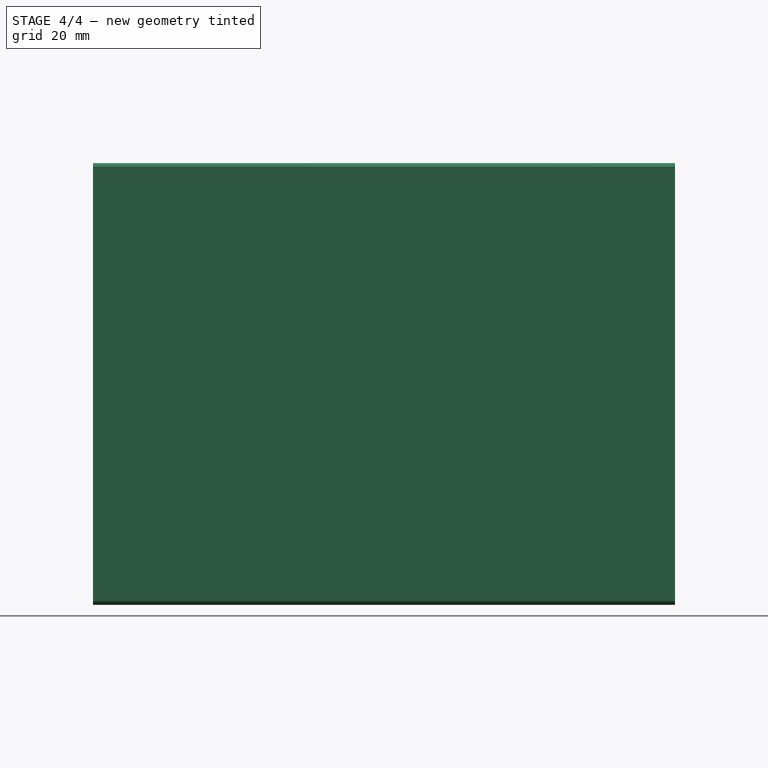
[diagram: stage 4 of 4 — front view after this stage's code; geometry added in this stage tinted green]
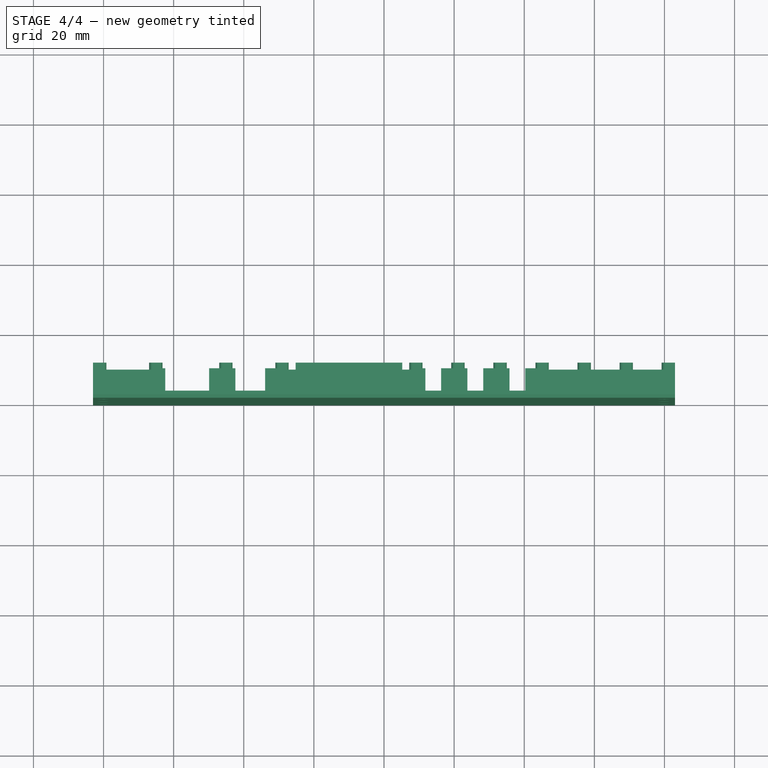
[diagram: stage 4 of 4 — top view after this stage's code; geometry added in this stage tinted green]
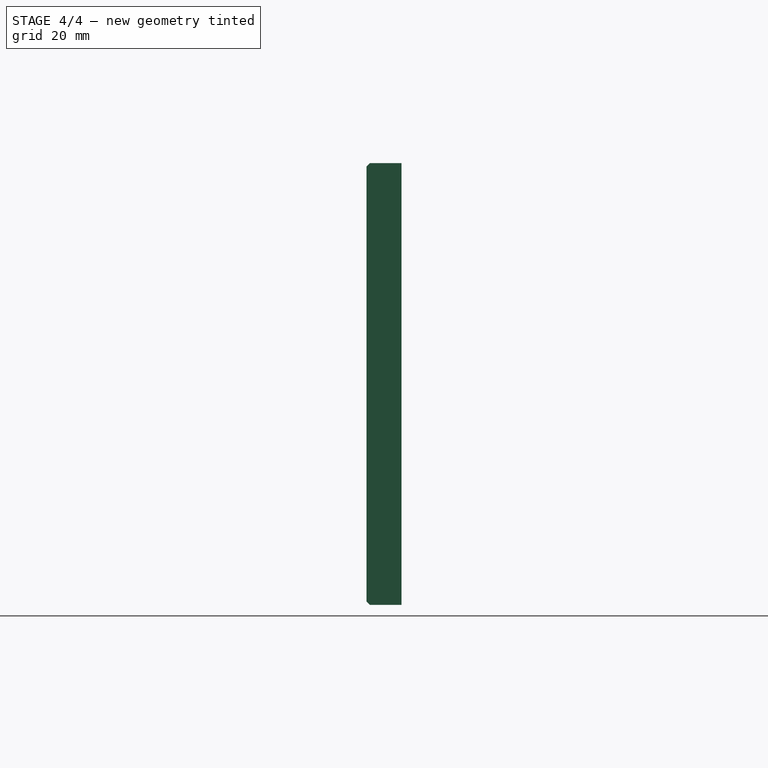
[diagram: stage 4 of 4 — right view after this stage's code; geometry added in this stage tinted green]
FEATURE [PartDesign::Fillet] Fillet
  Base = -> Chamfer001 [Edge125,Edge129,Edge137,Edge145,Edge161,Edge141,Edge133,Edge149,Edge165,Edge177,Edge181,Edge184,Edge180,Edge168,Edge164,Edge152,Edge148,Edge136,Edge132,Edge128]
  Radius = 1
FEATURE [PartDesign::Fillet] Fillet001
  Base = -> Fillet [Edge335,Edge337,Edge339,Edge343,Edge345,Edge347,Edge349,Edge351,Edge353,Edge352,Edge350,Edge348,Edge346,Edge344,Edge342,Edge341,Edge340,Edge338,Edge336,Edge333]
  Radius = 1
FEATURE [Sketcher::SketchObject] Sketch008
  Placement = pos=(0,0,0) rot=(1,0,0;1.5708rad)
  Support = -> Fillet001 [Face93]
  sketch-geometry (1):
    g0: Circle CenterX=-40 CenterY=63 CenterZ=0 NormalX=0 NormalY=0 NormalZ=1 Radius=1.8
  constraints (3):
    c: Radius(g0) = 1.8
    c: DistanceY(g-1,g0) = 63
    c: DistanceX(g0,g-1) = 40
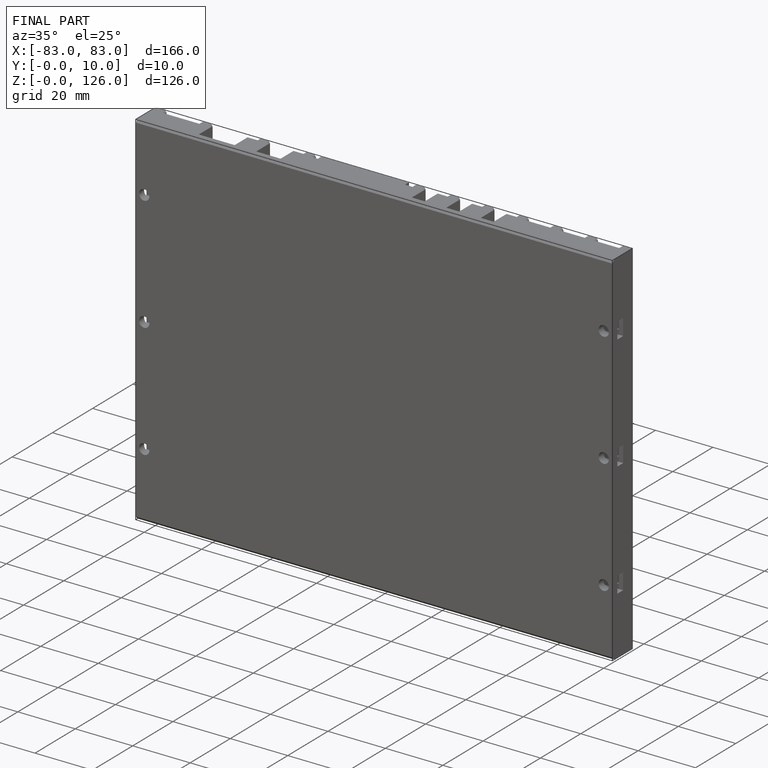
[diagram: finished part — iso view with bounding-box wireframe]
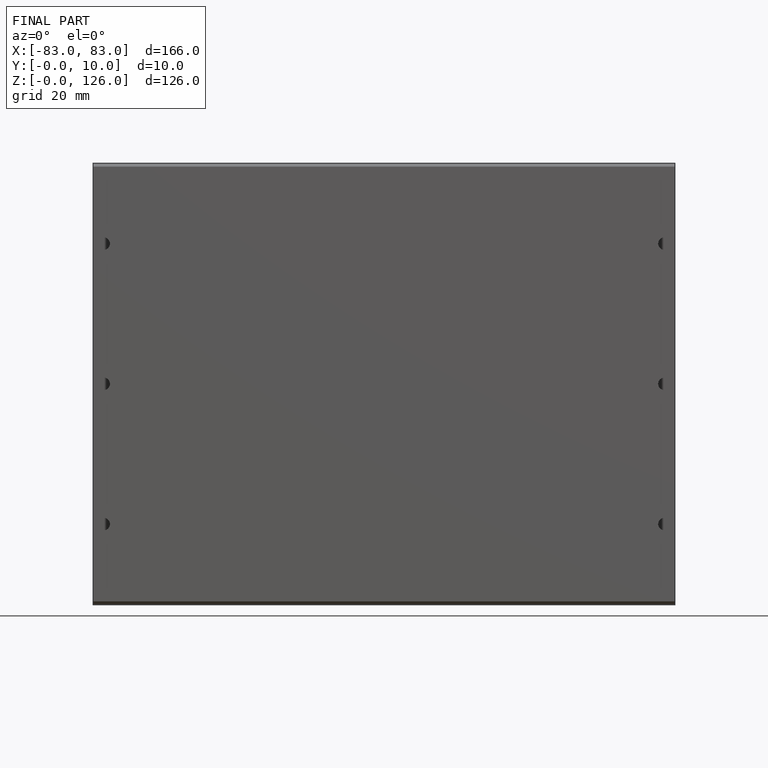
[diagram: finished part — front view with bounding-box wireframe]
